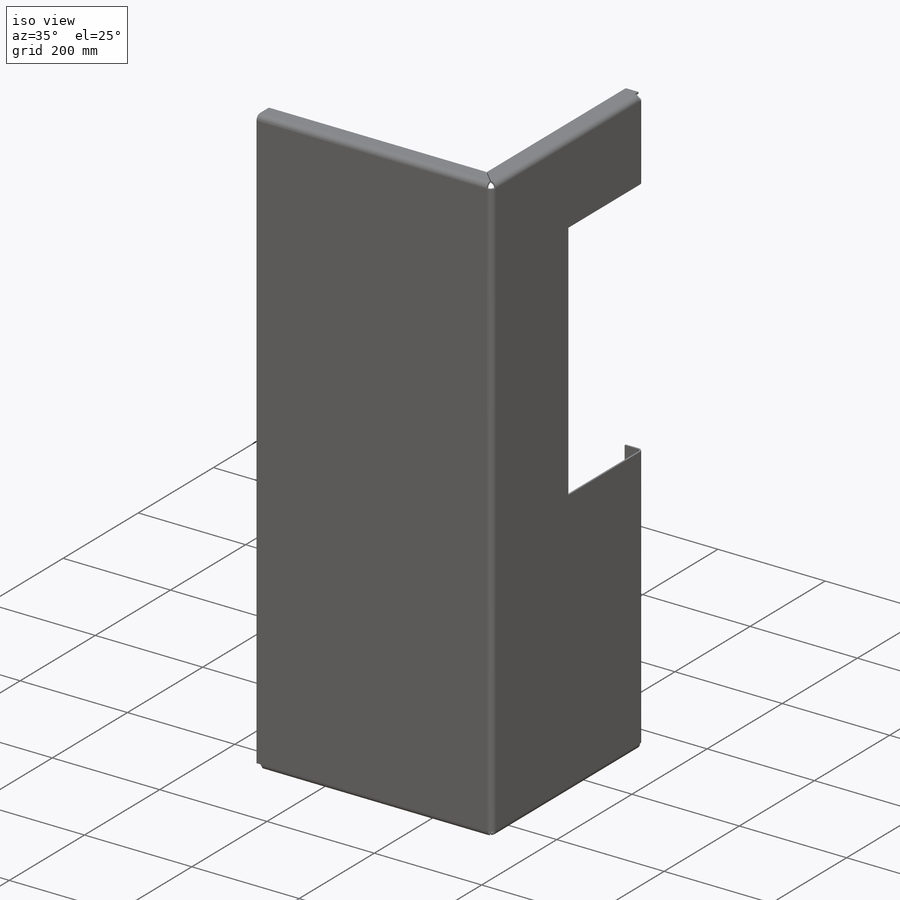
[diagram: iso view]
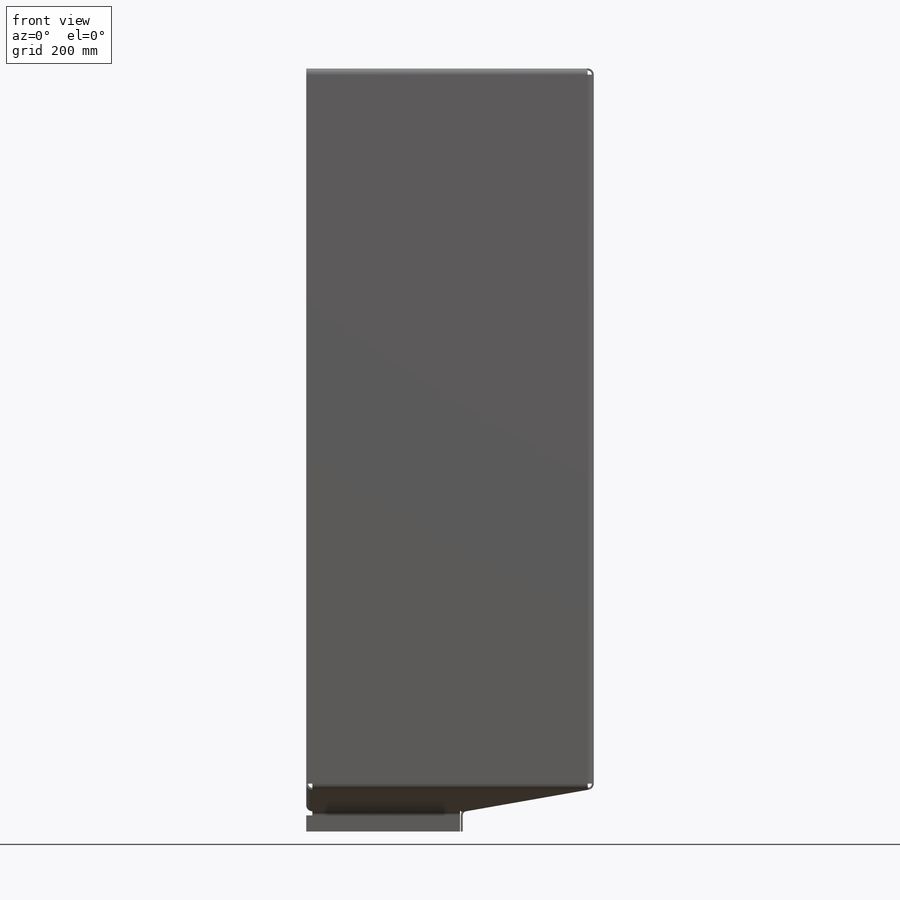
[diagram: front view]
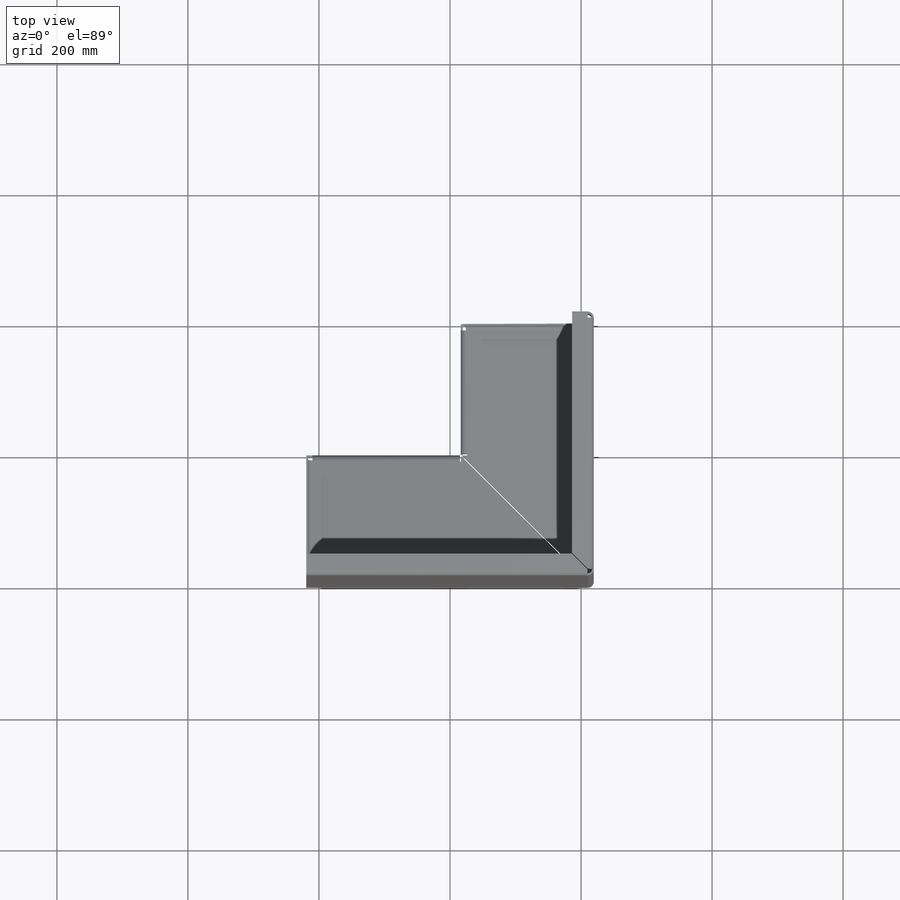
[diagram: top view]
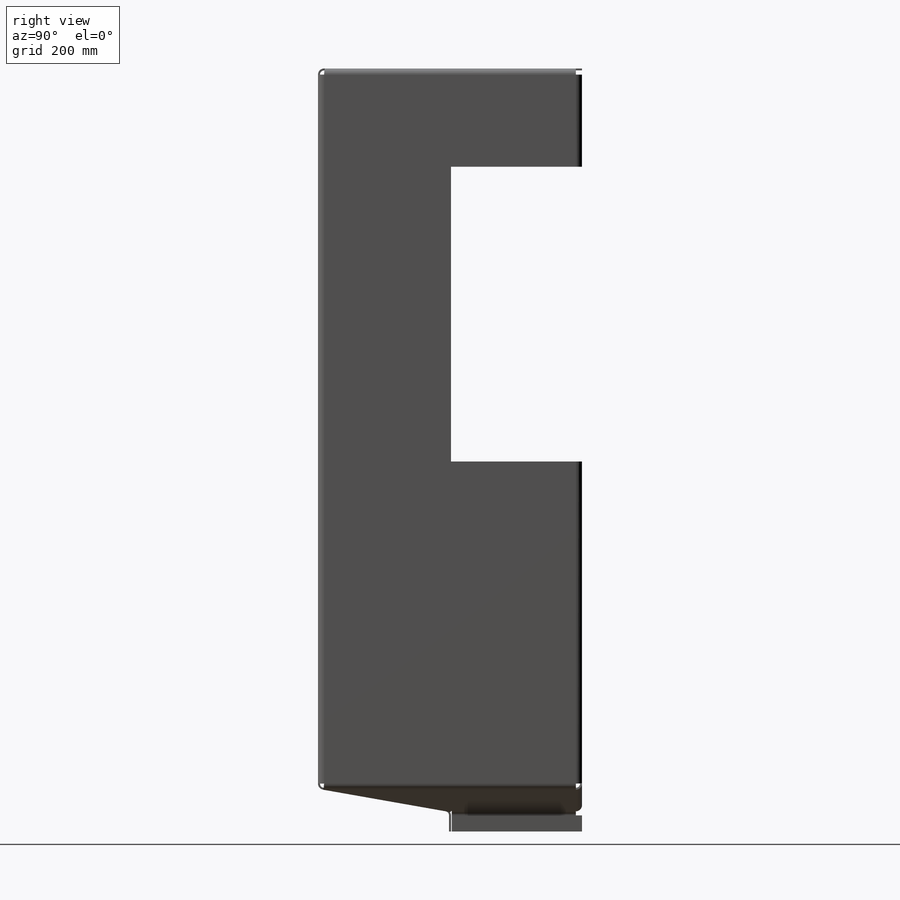
[diagram: right view]
SOLIDWORKS PART (.sldprt)
format: sldprt  version: not decoded by parser v0  size: 466,432 bytes
history: native  units: mm
features: sketch x14, sheet_metal_op x10, plane x3, material x1, cut_extrude x1, extrude x1 + 11 further entries (+8 scaffold rows collapsed; 1 parser-record rows omitted)
feature tree (50):
  scaffold x8  (default folders/planes/origin — collapsed)
  material  "1.0037 (S235JR)"
  plane  "Ebene vorne"
  plane  "Ebene oben"
  plane  "Ebene rechts"
  sketch  "Skizze1"  dims[D1=439.0mm D2=1100.0mm]
  sheet_metal_op  "Blech1"
  sheet_metal_op  "Basis-Blech1"
  sketch  "Skizze6"  dims[c1.D1=6.35mm c1.D4=90.0deg c1.D5=1.0 c1.D8=1.5mm c1.D9=1.5mm c2.D1=6.35mm c2.D2=500.0mm c2.D3=0.0mm c2.D6=10.0mm c2.D7=400.0mm]
  sketch  "Skizze7"  dims[c1.D1=200.0mm c1.D2=~16.320057mm c2.D2=10.0deg]
  sketch  "Skizze72"  dims[c1.D1=600.0mm c1.D2=200.0mm c2.D1=600.0mm c2.D3=150.0mm]
  cut_extrude  "Schnitt-Linear austragen1"  Depth=6.35mm
  extrude  "Gehrungsbiegung12"  Depth=6.35mm Kante-Lasche5=0
  sketch  "Skizze43"
  sketch  "Skizze74"
  sheet_metal_op  "Kantenbiegung10"
  sheet_metal_op  "Kantenbiegung19"  Kante-Lasche7=0
  sketch  "Skizze62"
  sketch  "Skizze63"
  sheet_metal_op  "Kantenbiegung15"
  sheet_metal_op  "Kantenbiegung16"  Kante-Lasche8=0
  sketch  "Skizze70"
  sketch  "Skizze71"
  sketch  "Skizze76"
  sketch  "Skizze78"
  sheet_metal_op  "Kantenbiegung17"
  sheet_metal_op  "Kantenbiegung18"
  sheet_metal_op  "Kantenbiegung20"
  sheet_metal_op  "Kantenbiegung21"
  "Abwicklung1"
  sketch  "Biegung-Linien1"
  sketch  "Rahmen1"
  "Abwickeln-<Gehrungsbiegung7>1"
  parser-record x1  (decoder bookkeeping rows leaked as tree rows — omitted from the tree; the rows remain in map.json)
  "Abwickeln-<Kantenbiegung10>1"
  "Abwickeln-<Gehrungsbiegung12>1"
  "Abwickeln-<Kantenbiegung15>1"
  "Abwickeln-<Kantenbiegung16>1"
  "Abwickeln-<Kantenbiegung17>1"
  "Abwickeln-<Kantenbiegung18>1"
  "Abwickeln-<Kantenbiegung19>1"
  "Abwickeln-<Kantenbiegung20>1"
  "Abwickeln-<Kantenbiegung21>1"
decode coverage: 8 of 26 modeling features carry decoded parameters; 11 rows unclassified (native names shown)
note: ~ marks probable driven/reference dimensions
note: suppression state not decoded; provenance and decode notes live in map.json
